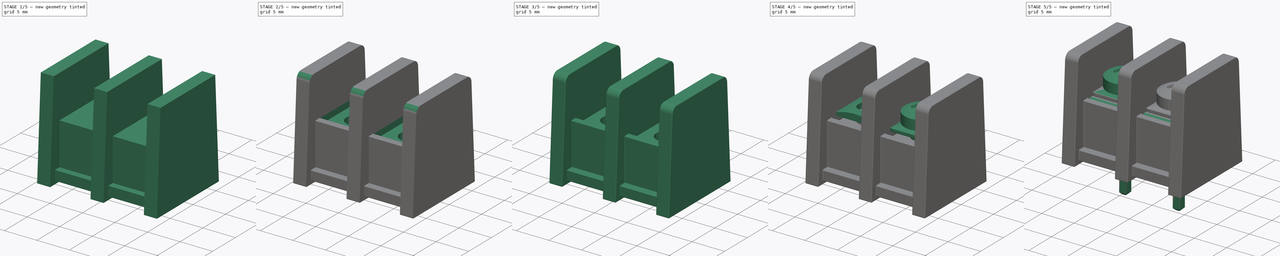
[diagram: build sequence overview — one tinted view per stage of 5, left to right]
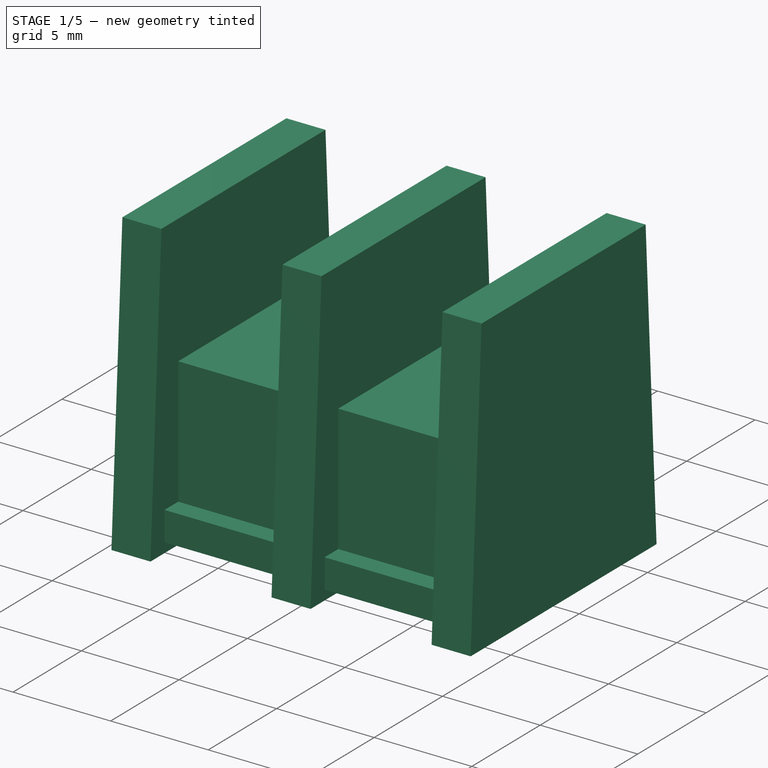
[diagram: stage 1 of 5 — iso view after this stage's code; geometry added in this stage tinted green]
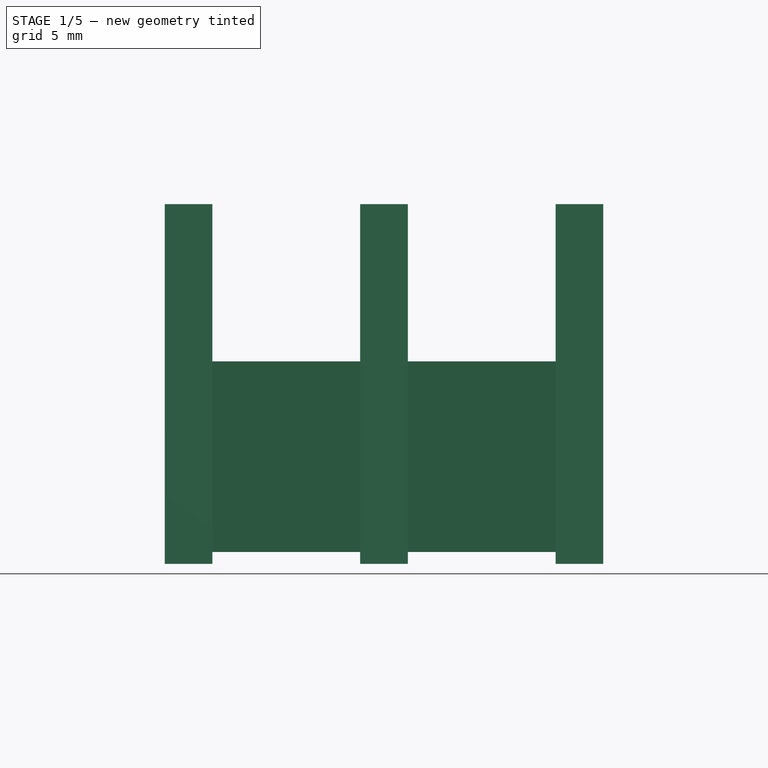
[diagram: stage 1 of 5 — front view after this stage's code; geometry added in this stage tinted green]
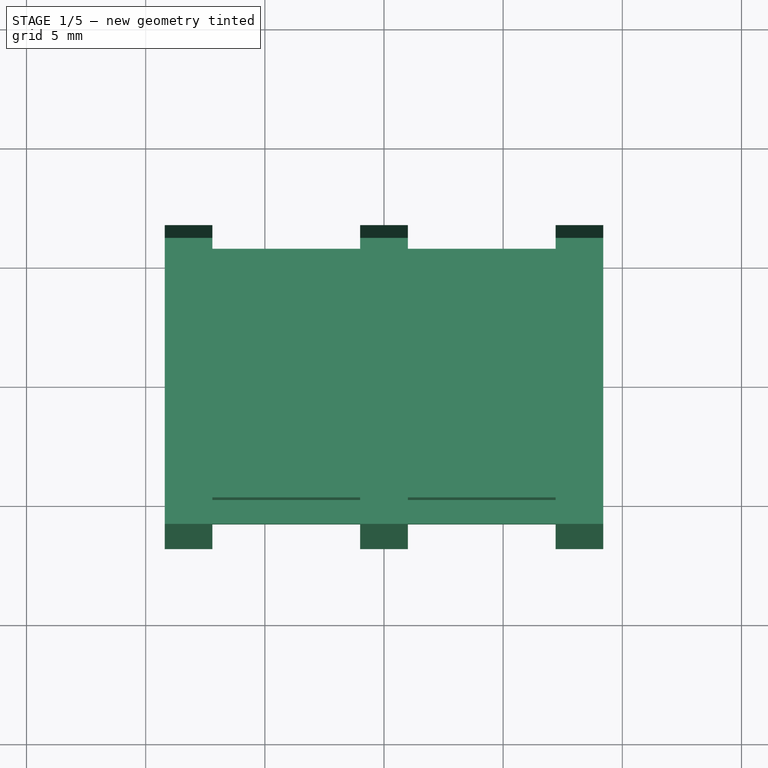
[diagram: stage 1 of 5 — top view after this stage's code; geometry added in this stage tinted green]
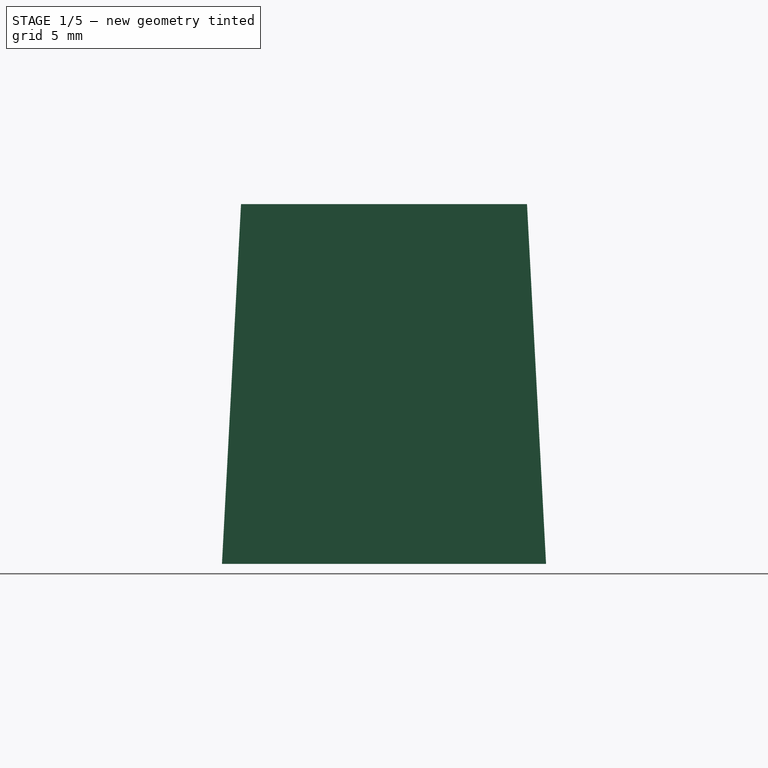
[diagram: stage 1 of 5 — right view after this stage's code; geometry added in this stage tinted green]
FCSTD DOCUMENT  (FreeCAD 0.15R4671 (Git))
Label: DG35C-B-02P-13-200AH
License: All rights reserved
LicenseURL: http://en.wikipedia.org/wiki/All_rights_reserved
objects: PartDesign::Fillet×21, Sketcher::SketchObject×16, PartDesign::Pocket×11, PartDesign::LinearPattern×7, PartDesign::Pad×5, Part::FeaturePython×2, PartDesign::Chamfer×1
note: 79 computed .brp shape members not serialized (recipe doc carries the construction recipe); baked Part::Feature solids carry a one-line shape summary decoded from their .brp

FEATURE [Sketcher::SketchObject] Sketch
  Placement = pos=(-9.2,0,0) rot=(0.57735,0.57735,0.57735;2.0944rad)
  sketch-geometry (4):
    g0: LineSegment StartX=-6.8 StartY=0 StartZ=0 EndX=6.8 EndY=0 EndZ=0
    g1: LineSegment StartX=6.8 StartY=0 StartZ=0 EndX=6 EndY=15.1 EndZ=0
    g2: LineSegment StartX=6 StartY=15.1 StartZ=0 EndX=-6 EndY=15.1 EndZ=0
    g3: LineSegment StartX=-6 StartY=15.1 StartZ=0 EndX=-6.8 EndY=0 EndZ=0
  constraints (12):
    c: PointOnObject(g0,g-1)
    c: Horizontal(g0)
    c: Coincident(g0,g1)
    c: Coincident(g1,g2)
    c: Horizontal(g2)
    c: Coincident(g2,g3)
    c: Coincident(g3,g0)
    c: DistanceX(g0) = 13.6
    c: DistanceX(g2) = -12
    c: DistanceY(g2,g0) = -15.1
    c: Symmetric(g2,g1,g-2)
    c: Symmetric(g0,g0,g-1)
FEATURE [PartDesign::Pad] Pad
  Length = 18.4
  Length2 = 100
  Placement = pos=(-9.2,0,0) rot=(0.57735,0.57735,0.57735;2.0944rad)
  Sketch = -> Sketch
  Type = 0
FEATURE [Sketcher::SketchObject] Sketch001
  Placement = pos=(-9.2,0,0) rot=(0.707107,0.707107,0;3.14159rad)
  Support = -> Pad [Face1]
  sketch-geometry (4):
    g0: LineSegment StartX=-8 StartY=8.2 StartZ=0 EndX=8 EndY=8.2 EndZ=0
    g1: LineSegment StartX=8 StartY=8.2 StartZ=0 EndX=8 EndY=2 EndZ=0
    g2: LineSegment StartX=8 StartY=2 StartZ=0 EndX=-8 EndY=2 EndZ=0
    g3: LineSegment StartX=-8 StartY=2 StartZ=0 EndX=-8 EndY=8.2 EndZ=0
  constraints (12):
    c: Coincident(g0,g1)
    c: Coincident(g1,g2)
    c: Coincident(g2,g3)
    c: Coincident(g3,g0)
    c: Horizontal(g0)
    c: Horizontal(g2)
    c: Vertical(g1)
    c: Vertical(g3)
    c: DistanceX(g2) = -16
    c: DistanceY(g1) = -6.2
    c: DistanceY(g-1,g2) = 2
    c: Symmetric(g2,g1,g-2)
FEATURE [PartDesign::Pocket] Pocket
  Length = 0.5
  Placement = pos=(-9.2,0,0) rot=(0.57735,0.57735,0.57735;2.0944rad)
  Sketch = -> Sketch001
  Type = 0
FEATURE [PartDesign::LinearPattern] LinearPattern
  Direction = -> Sketch001 [V_Axis]
  Length = 8.2
  Occurrences = 2
  Originals = -> [Pocket]
  Placement = pos=(-9.2,0,0) rot=(0.57735,0.57735,0.57735;2.0944rad)
FEATURE [Sketcher::SketchObject] Sketch002
  Placement = pos=(-9.2,0,15.1) rot=(0,0,-1;1.5708rad)
  Support = -> LinearPattern [Face6]
  sketch-geometry (4):
    g0: LineSegment StartX=-8 StartY=8.2 StartZ=0 EndX=8 EndY=8.2 EndZ=0
    g1: LineSegment StartX=8 StartY=8.2 StartZ=0 EndX=8 EndY=2 EndZ=0
    g2: LineSegment StartX=8 StartY=2 StartZ=0 EndX=-8 EndY=2 EndZ=0
    g3: LineSegment StartX=-8 StartY=2 StartZ=0 EndX=-8 EndY=8.2 EndZ=0
  constraints (12):
    c: Coincident(g0,g1)
    c: Coincident(g1,g2)
    c: Coincident(g2,g3)
    c: Coincident(g3,g0)
    c: Horizontal(g0)
    c: Horizontal(g2)
    c: Vertical(g1)
    c: Vertical(g3)
    c: DistanceY(g1) = -6.2
    c: DistanceX(g2) = -16
    c: DistanceY(g-1,g2) = 2
    c: Symmetric(g2,g1,g-2)
FEATURE [PartDesign::Pocket] Pocket001
  Length = 6.6
  Placement = pos=(-9.2,0,0) rot=(0.57735,0.57735,0.57735;2.0944rad)
  Sketch = -> Sketch002
  Type = 0
FEATURE [PartDesign::LinearPattern] LinearPattern001
  Direction = -> Sketch002 [V_Axis]
  Length = 8.2
  Occurrences = 2
  Originals = -> [Pocket001]
  Placement = pos=(-9.2,0,0) rot=(0.57735,0.57735,0.57735;2.0944rad)
FEATURE [Sketcher::SketchObject] Sketch003
  ExternalGeometry = -> [LinearPattern001]
  Placement = pos=(-9.2,0,0.5) rot=(0.707107,0.707107,0;3.14159rad)
  Support = -> LinearPattern001 [Face22]
  sketch-geometry (8):
    g0: LineSegment StartX=-6.77351 StartY=8.2 StartZ=0 EndX=-5.77351 EndY=8.2 EndZ=0
    g1: LineSegment StartX=-5.77351 StartY=8.2 StartZ=0 EndX=-5.77351 EndY=2 EndZ=0
    g2: LineSegment StartX=-5.77351 StartY=2 StartZ=0 EndX=-6.77351 EndY=2 EndZ=0
    g3: LineSegment StartX=-6.77351 StartY=2 StartZ=0 EndX=-6.77351 EndY=8.2 EndZ=0
    g4: LineSegment StartX=5.77351 StartY=8.2 StartZ=0 EndX=6.77351 EndY=8.2 EndZ=0
    g5: LineSegment StartX=6.77351 StartY=8.2 StartZ=0 EndX=6.77351 EndY=2 EndZ=0
    g6: LineSegment StartX=6.77351 StartY=2 StartZ=0 EndX=5.77351 EndY=2 EndZ=0
    g7: LineSegment StartX=5.77351 StartY=2 StartZ=0 EndX=5.77351 EndY=8.2 EndZ=0
  constraints (23):
    c: Coincident(g0,g1)
    c: Coincident(g1,g2)
    c: Coincident(g2,g3)
    c: Coincident(g3,g0)
    c: Horizontal(g0)
    c: Horizontal(g2)
    c: Vertical(g1)
    c: Vertical(g3)
    c: Coincident(g0,g-3)
    c: Coincident(g2,g-3)
    c: DistanceX(g2) = -1
    c: Coincident(g4,g5)
    c: Coincident(g5,g6)
    c: Coincident(g6,g7)
    c: Coincident(g7,g4)
    c: Horizontal(g4)
    c: Horizontal(g6)
    c: Vertical(g5)
    c: Vertical(g7)
    c: DistanceX(g-1,g5) = 6.77351
    c: DistanceY(g6,g2) = 0
    c: Equal(g7,g1)
    c: Equal(g4,g0)
FEATURE [PartDesign::Pocket] Pocket002
  Length = 5
  Placement = pos=(-9.2,0,0) rot=(0.57735,0.57735,0.57735;2.0944rad)
  Sketch = -> Sketch003
  Type = 1
FEATURE [PartDesign::LinearPattern] LinearPattern002
  Direction = -> Sketch003 [V_Axis]
  Length = 8.2
  Occurrences = 2
  Originals = -> [Pocket002]
  Placement = pos=(-9.2,0,0) rot=(0.57735,0.57735,0.57735;2.0944rad)
FEATURE [Sketcher::SketchObject] Sketch004
  ExternalGeometry = -> [LinearPattern002]
  Placement = pos=(-9.2,0,8.5) rot=(0,0,-1;1.5708rad)
  Support = -> LinearPattern002 [Face13]
  sketch-geometry (8):
    g0: LineSegment StartX=-5.77351 StartY=8.2 StartZ=0 EndX=-4.77351 EndY=8.2 EndZ=0
    g1: LineSegment StartX=-4.77351 StartY=8.2 StartZ=0 EndX=-4.77351 EndY=2 EndZ=0
    g2: LineSegment StartX=-4.77351 StartY=2 StartZ=0 EndX=-5.77351 EndY=2 EndZ=0
    g3: LineSegment StartX=-5.77351 StartY=2 StartZ=0 EndX=-5.77351 EndY=8.2 EndZ=0
    g4: LineSegment StartX=5.77351 StartY=8.2 StartZ=0 EndX=4.77351 EndY=8.2 EndZ=0
    g5: LineSegment StartX=4.77351 StartY=8.2 StartZ=0 EndX=4.77351 EndY=2 EndZ=0
    g6: LineSegment StartX=4.77351 StartY=2 StartZ=0 EndX=5.77351 EndY=2 EndZ=0
    g7: LineSegment StartX=5.77351 StartY=2 StartZ=0 EndX=5.77351 EndY=8.2 EndZ=0
  constraints (22):
    c: Coincident(g0,g1)
    c: Coincident(g1,g2)
    c: Coincident(g2,g3)
    c: Coincident(g3,g0)
    c: Horizontal(g0)
    c: Horizontal(g2)
    c: Vertical(g1)
    c: Vertical(g3)
    c: Coincident(g0,g-3)
    c: Coincident(g2,g-3)
    c: DistanceX(g2) = -1
    c: Coincident(g4,g5)
    c: Coincident(g5,g6)
    c: Coincident(g6,g7)
    c: Coincident(g7,g4)
    c: Horizontal(g4)
    c: Horizontal(g6)
    c: Vertical(g5)
    c: Vertical(g7)
    c: Coincident(g4,g-4)
    c: Coincident(g6,g-4)
    c: Equal(g6,g2)
FEATURE [PartDesign::Pocket] Pocket003
  Length = 6.5
  Placement = pos=(-9.2,0,0) rot=(0.57735,0.57735,0.57735;2.0944rad)
  Sketch = -> Sketch004
  Type = 0
FEATURE [PartDesign::LinearPattern] LinearPattern003
  Direction = -> Sketch004 [V_Axis]
  Length = 8.2
  Occurrences = 2
  Originals = -> [Pocket003]
  Placement = pos=(-9.2,0,0) rot=(0.57735,0.57735,0.57735;2.0944rad)
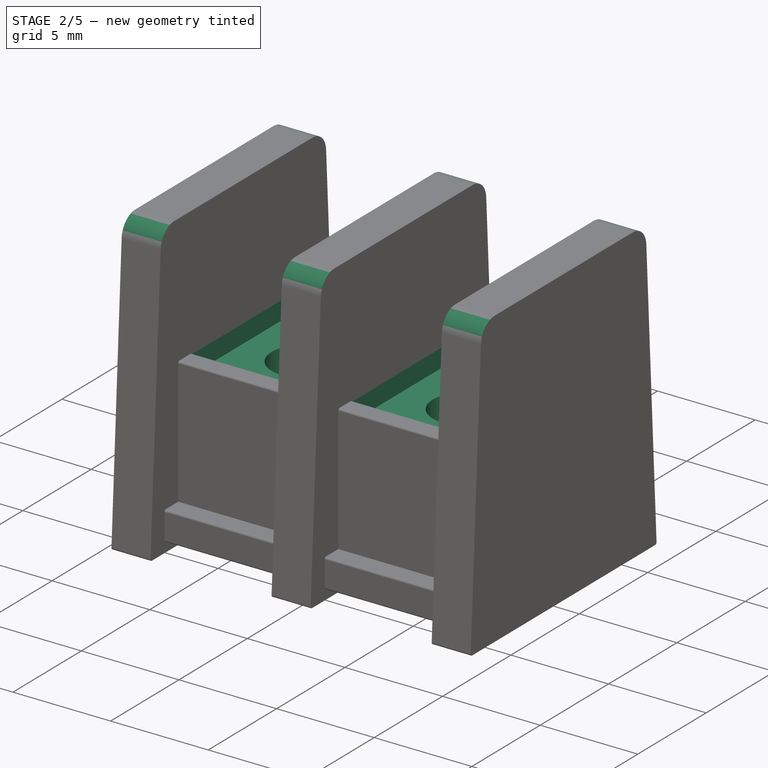
[diagram: stage 2 of 5 — iso view after this stage's code; geometry added in this stage tinted green]
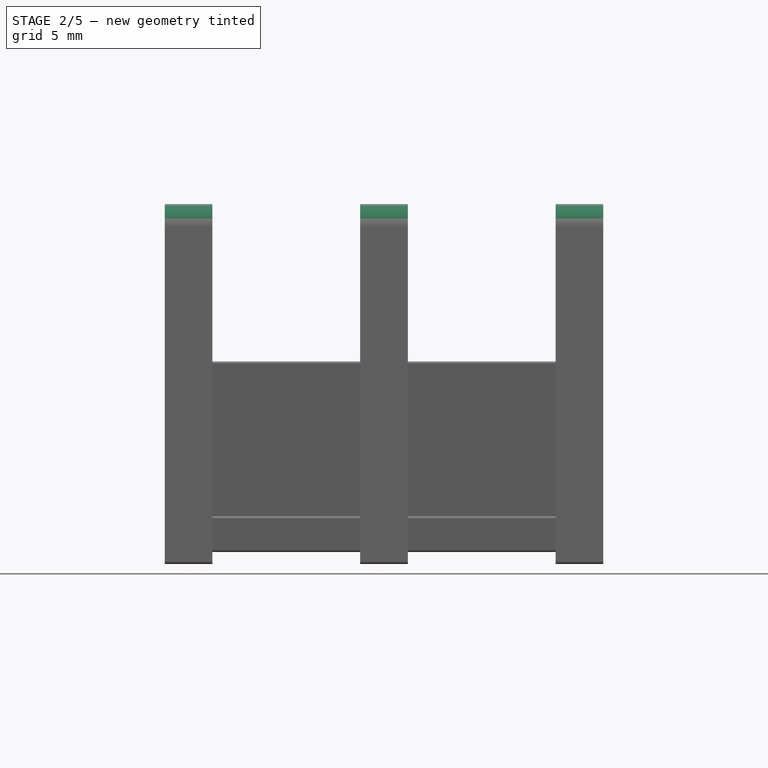
[diagram: stage 2 of 5 — front view after this stage's code; geometry added in this stage tinted green]
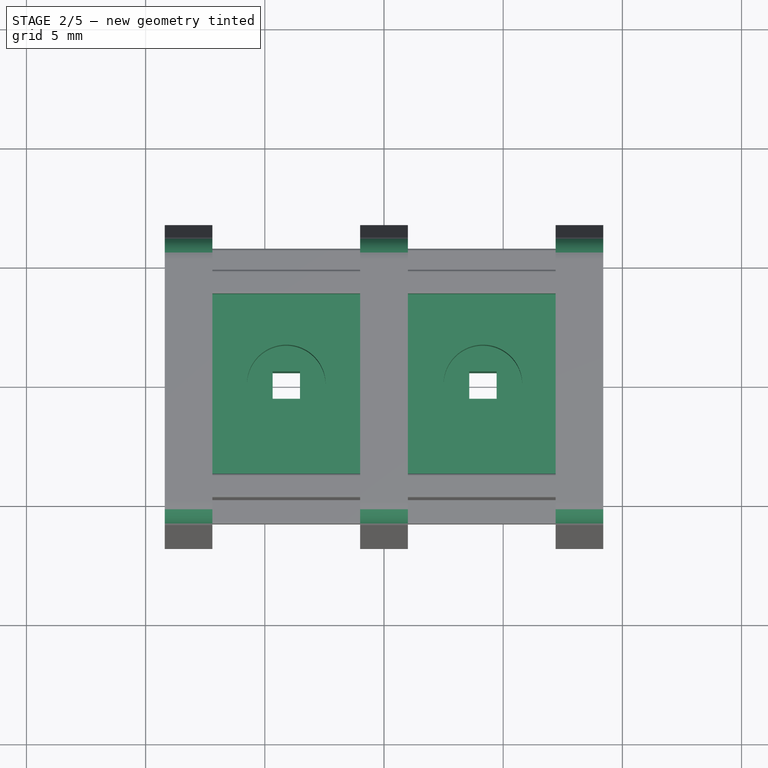
[diagram: stage 2 of 5 — top view after this stage's code; geometry added in this stage tinted green]
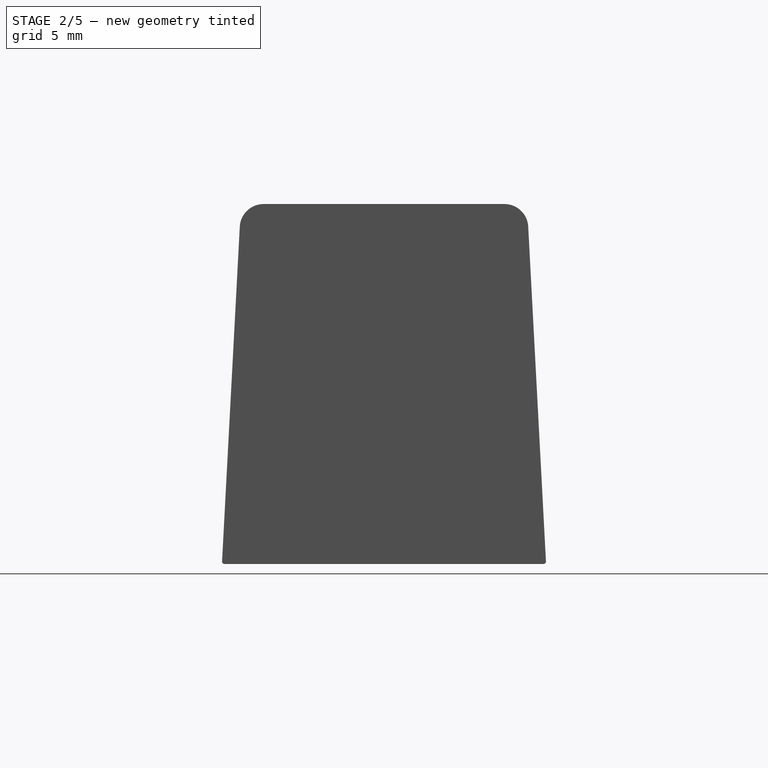
[diagram: stage 2 of 5 — right view after this stage's code; geometry added in this stage tinted green]
FEATURE [Sketcher::SketchObject] Sketch005
  ExternalGeometry = -> [LinearPattern003]
  Placement = pos=(-9.2,0,8.5) rot=(0,0,-1;1.5708rad)
  Support = -> LinearPattern003 [Face27]
  sketch-geometry (4):
    g0: LineSegment StartX=-3.77351 StartY=8.2 StartZ=0 EndX=3.77351 EndY=8.2 EndZ=0
    g1: LineSegment StartX=3.77351 StartY=8.2 StartZ=0 EndX=3.77351 EndY=2 EndZ=0
    g2: LineSegment StartX=3.77351 StartY=2 StartZ=0 EndX=-3.77351 EndY=2 EndZ=0
    g3: LineSegment StartX=-3.77351 StartY=2 StartZ=0 EndX=-3.77351 EndY=8.2 EndZ=0
  constraints (12):
    c: Coincident(g0,g1)
    c: Coincident(g1,g2)
    c: Coincident(g2,g3)
    c: Coincident(g3,g0)
    c: Horizontal(g0)
    c: Horizontal(g2)
    c: Vertical(g1)
    c: Vertical(g3)
    c: DistanceY(g1,g-4) = 0
    c: DistanceY(g0,g-3) = 0
    c: DistanceX(g0,g-3) = -1
    c: DistanceX(g0,g-4) = 1
FEATURE [PartDesign::Pocket] Pocket004
  Length = 1
  Placement = pos=(-9.2,0,0) rot=(0.57735,0.57735,0.57735;2.0944rad)
  Sketch = -> Sketch005
  Type = 0
FEATURE [PartDesign::LinearPattern] LinearPattern004
  Direction = -> Sketch005 [V_Axis]
  Length = 8.2
  Occurrences = 2
  Originals = -> [Pocket004]
  Placement = pos=(-9.2,0,0) rot=(0.57735,0.57735,0.57735;2.0944rad)
FEATURE [Sketcher::SketchObject] Sketch006
  Placement = pos=(-9.2,0,7.5) rot=(0,0,-1;1.5708rad)
  Support = -> LinearPattern004 [Face19]
  sketch-geometry (4):
    g0: LineSegment StartX=-0.575 StartY=5.675 StartZ=0 EndX=0.575 EndY=5.675 EndZ=0
    g1: LineSegment StartX=0.575 StartY=5.675 StartZ=0 EndX=0.575 EndY=4.525 EndZ=0
    g2: LineSegment StartX=0.575 StartY=4.525 StartZ=0 EndX=-0.575 EndY=4.525 EndZ=0
    g3: LineSegment StartX=-0.575 StartY=4.525 StartZ=0 EndX=-0.575 EndY=5.675 EndZ=0
  constraints (12):
    c: Coincident(g0,g1)
    c: Coincident(g1,g2)
    c: Coincident(g2,g3)
    c: Coincident(g3,g0)
    c: Horizontal(g0)
    c: Horizontal(g2)
    c: Vertical(g1)
    c: Vertical(g3)
    c: DistanceY(g-1,g2) = 4.525
    c: DistanceY(g1) = -1.15
    c: DistanceX(g0) = 1.15
    c: Symmetric(g0,g0,g-2)
FEATURE [PartDesign::Pocket] Pocket005
  Length = 5
  Placement = pos=(-9.2,0,0) rot=(0.57735,0.57735,0.57735;2.0944rad)
  Sketch = -> Sketch006
  Type = 1
FEATURE [PartDesign::LinearPattern] LinearPattern005
  Direction = -> Sketch006 [V_Axis]
  Length = 8.25
  Occurrences = 2
  Originals = -> [Pocket005]
  Placement = pos=(-9.2,0,0) rot=(0.57735,0.57735,0.57735;2.0944rad)
FEATURE [Sketcher::SketchObject] Sketch009
  Placement = pos=(-9.2,0,7.5) rot=(0,0,-1;1.5708rad)
  Support = -> LinearPattern005 [Face10]
  sketch-geometry (1):
    g0: Circle CenterX=0 CenterY=5.1 CenterZ=0 NormalX=0 NormalY=0 NormalZ=1 Radius=1.65
  constraints (3):
    c: PointOnObject(g0,g-2)
    c: DistanceY(g-1,g0) = 5.1
    c: Radius(g0) = 1.65
FEATURE [PartDesign::Pocket] Pocket006
  Length = 2.5
  Placement = pos=(-9.2,0,0) rot=(0.57735,0.57735,0.57735;2.0944rad)
  Sketch = -> Sketch009
  Type = 0
FEATURE [PartDesign::LinearPattern] LinearPattern006
  Direction = -> Sketch009 [V_Axis]
  Length = 8.25
  Occurrences = 2
  Originals = -> [Pocket006]
  Placement = pos=(-9.2,0,0) rot=(0.57735,0.57735,0.57735;2.0944rad)
FEATURE [PartDesign::Fillet] Fillet006
  Base = -> LinearPattern006 [Edge161,Edge90,Edge30,Edge26,Edge84,Edge159]
  Placement = pos=(-9.2,0,0) rot=(0.57735,0.57735,0.57735;2.0944rad)
  Radius = 1
FEATURE [PartDesign::Fillet] Fillet007
  Base = -> Fillet006 [Edge171,Edge96,Edge25,Edge32,Edge88,Edge163]
  Placement = pos=(-9.2,0,0) rot=(0.57735,0.57735,0.57735;2.0944rad)
  Radius = 0.1
FEATURE [PartDesign::Fillet] Fillet008
  Base = -> Fillet007 [Edge124,Edge128,Edge135,Edge137,Edge41,Edge45,Edge52,Edge54,Edge57,Edge140,Edge151,Edge68]
  Placement = pos=(-9.2,0,0) rot=(0.57735,0.57735,0.57735;2.0944rad)
  Radius = 0.1
FEATURE [PartDesign::Fillet] Fillet009
  Base = -> Fillet008 [Edge45,Edge162,Edge165,Edge48]
  Placement = pos=(-9.2,0,0) rot=(0.57735,0.57735,0.57735;2.0944rad)
  Radius = 0.1
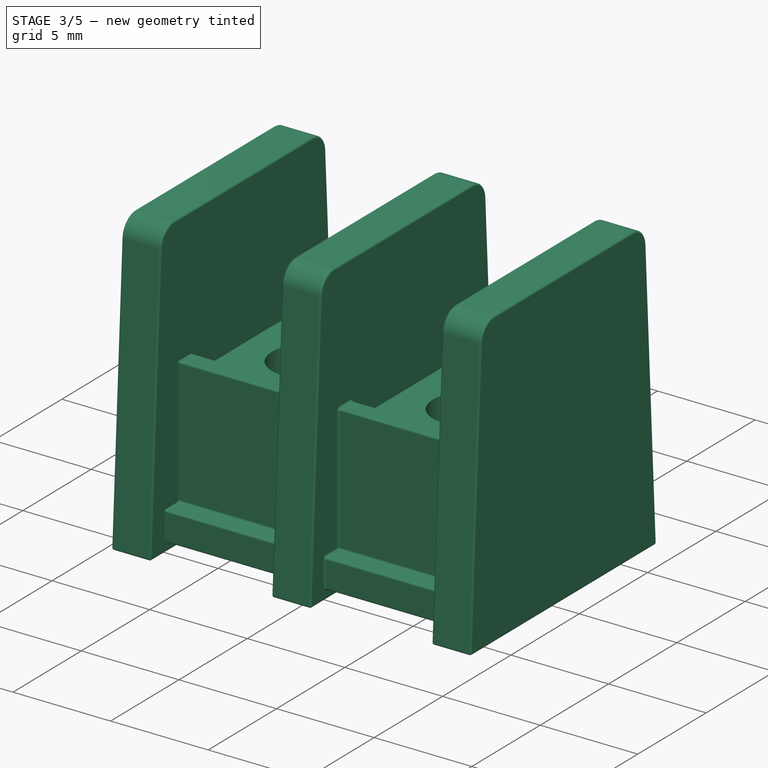
[diagram: stage 3 of 5 — iso view after this stage's code; geometry added in this stage tinted green]
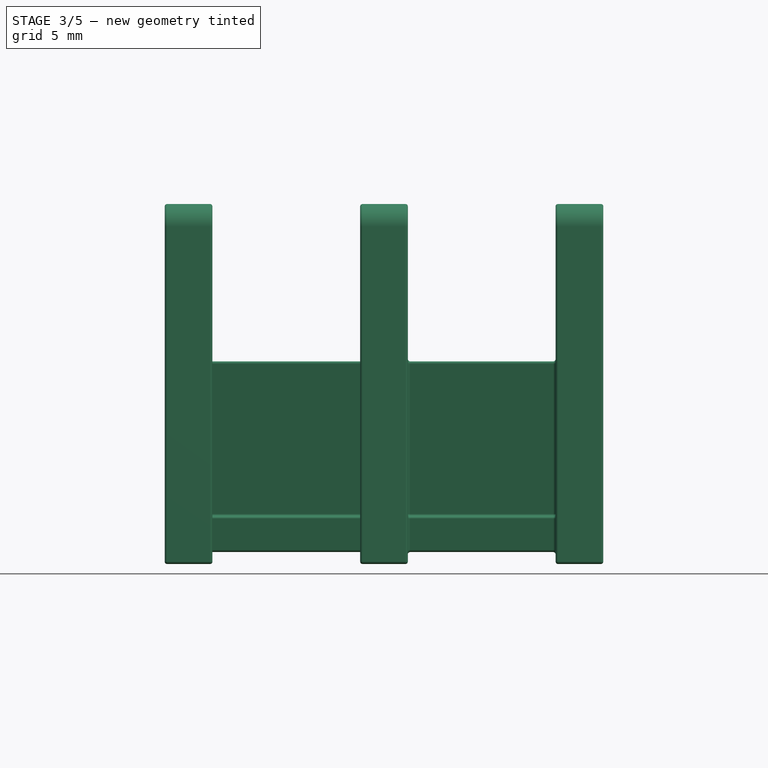
[diagram: stage 3 of 5 — front view after this stage's code; geometry added in this stage tinted green]
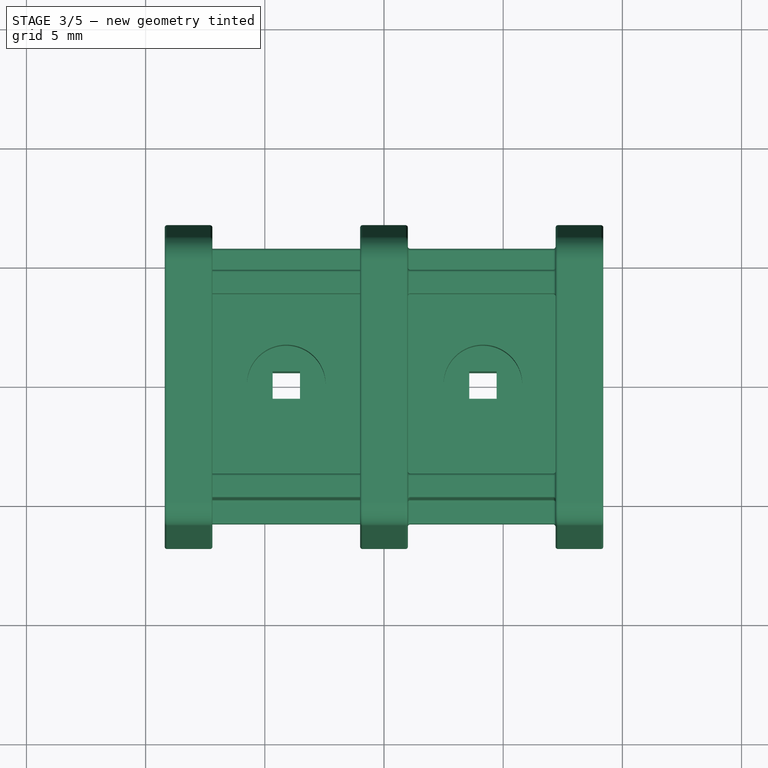
[diagram: stage 3 of 5 — top view after this stage's code; geometry added in this stage tinted green]
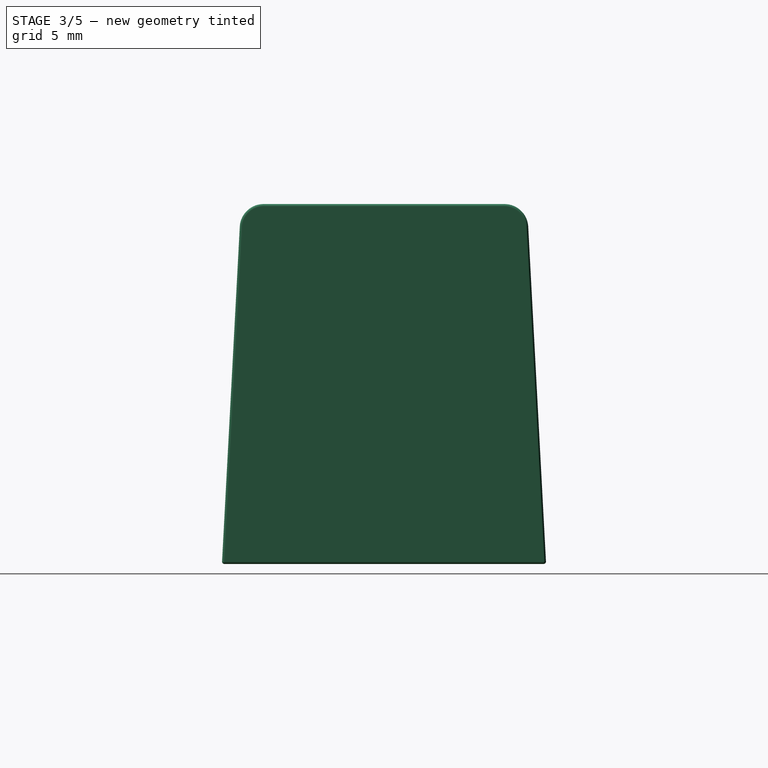
[diagram: stage 3 of 5 — right view after this stage's code; geometry added in this stage tinted green]
FEATURE [PartDesign::Fillet] Fillet010
  Base = -> Fillet009 [Edge169,Edge46,Edge60,Edge183]
  Placement = pos=(-9.2,0,0) rot=(0.57735,0.57735,0.57735;2.0944rad)
  Radius = 0.1
FEATURE [PartDesign::Fillet] Fillet011
  Base = -> Fillet010 [Edge240]
  Placement = pos=(-9.2,0,0) rot=(0.57735,0.57735,0.57735;2.0944rad)
  Radius = 0.1
FEATURE [PartDesign::Fillet] Fillet012
  Base = -> Fillet011 [Edge35]
  Placement = pos=(-9.2,0,0) rot=(0.57735,0.57735,0.57735;2.0944rad)
  Radius = 0.1
FEATURE [PartDesign::Fillet] Fillet013
  Base = -> Fillet012 [Edge143]
  Placement = pos=(-9.2,0,0) rot=(0.57735,0.57735,0.57735;2.0944rad)
  Radius = 0.1
FEATURE [PartDesign::Fillet] Fillet014
  Base = -> Fillet013 [Edge107]
  Placement = pos=(-9.2,0,0) rot=(0.57735,0.57735,0.57735;2.0944rad)
  Radius = 0.1
FEATURE [PartDesign::Fillet] Fillet015
  Base = -> Fillet014 [Edge226]
  Placement = pos=(-9.2,0,0) rot=(0.57735,0.57735,0.57735;2.0944rad)
  Radius = 0.1
FEATURE [PartDesign::Fillet] Fillet016
  Base = -> Fillet015 [Edge107]
  Placement = pos=(-9.2,0,0) rot=(0.57735,0.57735,0.57735;2.0944rad)
  Radius = 0.1
FEATURE [PartDesign::Fillet] Fillet017
  Base = -> Fillet016 [Edge50]
  Placement = pos=(-9.2,0,0) rot=(0.57735,0.57735,0.57735;2.0944rad)
  Radius = 0.1
FEATURE [PartDesign::Fillet] Fillet018
  Base = -> Fillet017 [Edge120]
  Placement = pos=(-9.2,0,0) rot=(0.57735,0.57735,0.57735;2.0944rad)
  Radius = 0.1
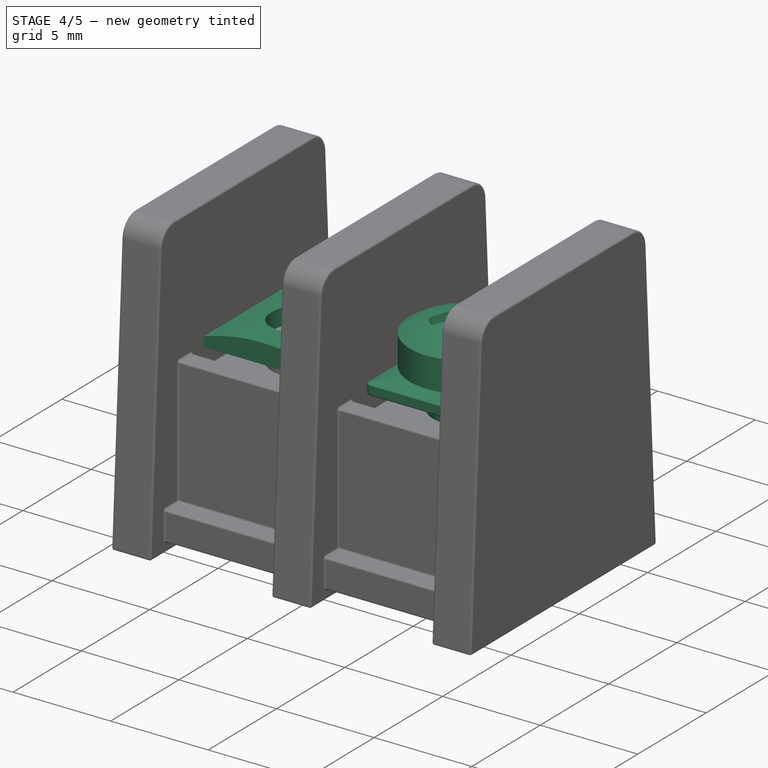
[diagram: stage 4 of 5 — iso view after this stage's code; geometry added in this stage tinted green]
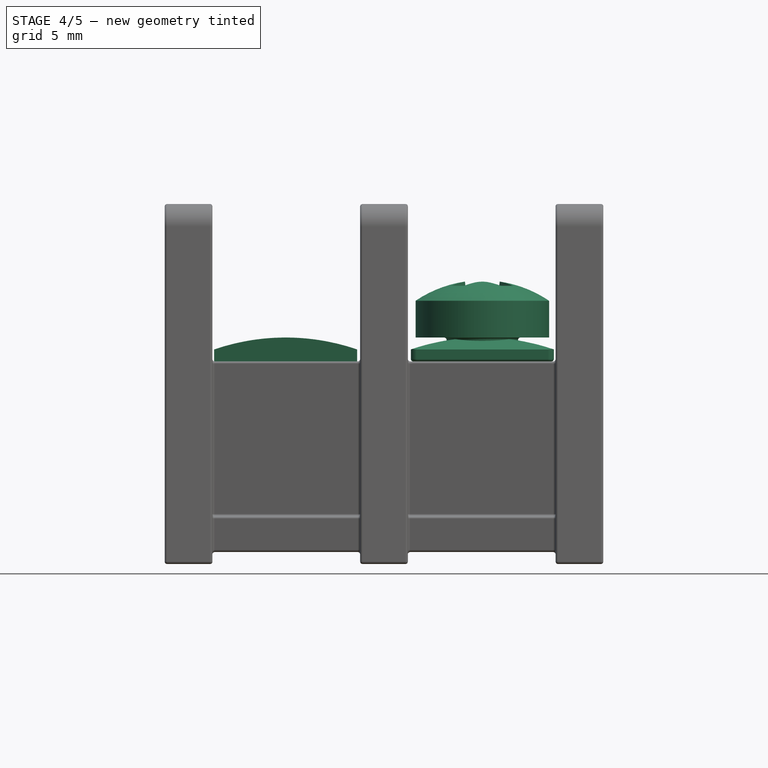
[diagram: stage 4 of 5 — front view after this stage's code; geometry added in this stage tinted green]
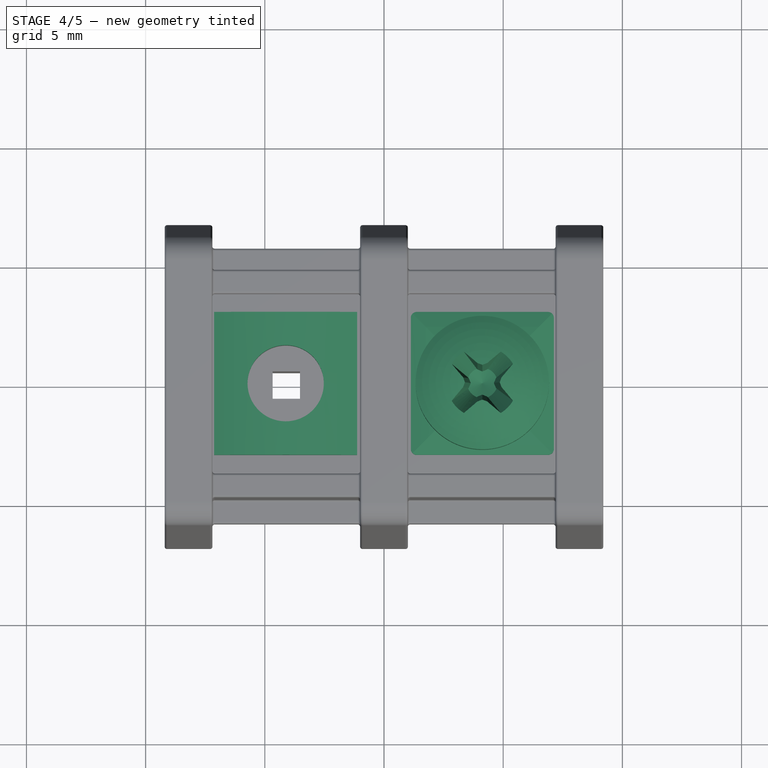
[diagram: stage 4 of 5 — top view after this stage's code; geometry added in this stage tinted green]
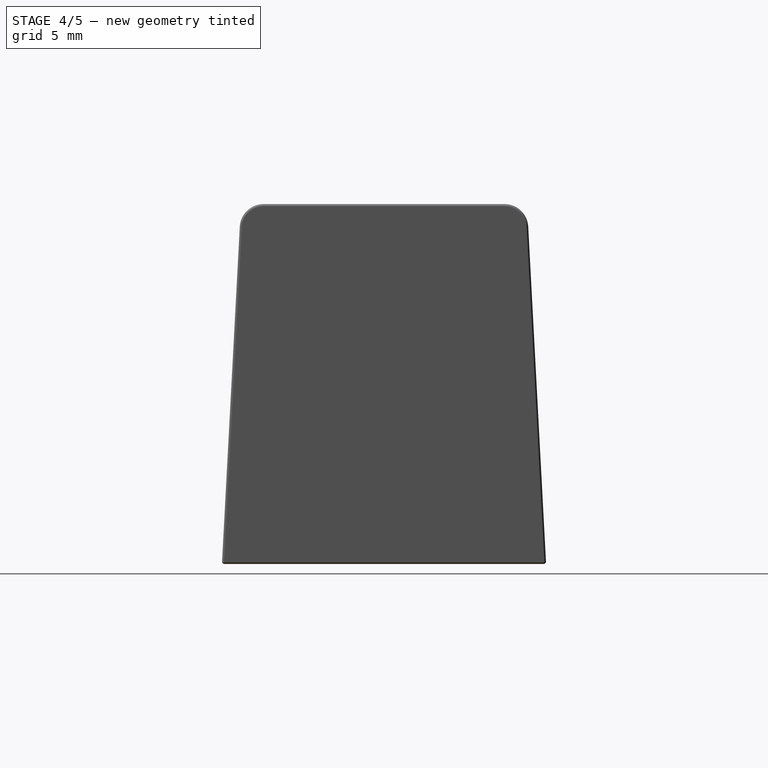
[diagram: stage 4 of 5 — right view after this stage's code; geometry added in this stage tinted green]
FEATURE [Sketcher::SketchObject] Sketch011
  Placement = pos=(0,0,8.5) rot=(0,0,1;0rad)
  sketch-geometry (5):
    g0: LineSegment StartX=-7.125 StartY=3 StartZ=0 EndX=-1.125 EndY=3 EndZ=0
    g1: LineSegment StartX=-1.125 StartY=3 StartZ=0 EndX=-1.125 EndY=-3 EndZ=0
    g2: LineSegment StartX=-1.125 StartY=-3 StartZ=0 EndX=-7.125 EndY=-3 EndZ=0
    g3: LineSegment StartX=-7.125 StartY=-3 StartZ=0 EndX=-7.125 EndY=3 EndZ=0
    g4: Circle CenterX=-4.125 CenterY=0 CenterZ=0 NormalX=0 NormalY=0 NormalZ=1 Radius=1.6
  constraints (15):
    c: Coincident(g0,g1)
    c: Coincident(g1,g2)
    c: Coincident(g2,g3)
    c: Coincident(g3,g0)
    c: Horizontal(g0)
    c: Horizontal(g2)
    c: Vertical(g1)
    c: Vertical(g3)
    c: Equal(g0,g1)
    c: Symmetric(g0,g1,g-1)
    c: DistanceX(g0) = 6
    c: DistanceX(g-1,g1) = -1.125
    c: PointOnObject(g4,g-1)
    c: DistanceX(g-1,g4) = -4.125
    c: Radius(g4) = 1.6
FEATURE [PartDesign::Pad] Pad003
  Length = 1
  Length2 = 100
  Placement = pos=(0,0,8.5) rot=(0,0,1;0rad)
  Sketch = -> Sketch011
  Type = 0
FEATURE [Sketcher::SketchObject] Sketch012
  ExternalGeometry = -> [Pad003]
  Placement = pos=(0,-3,8.5) rot=(1,0,0;1.5708rad)
  Support = -> Pad003 [Face3]
  sketch-geometry (6):
    g0: ArcOfCircle CenterX=-4.125 CenterY=-8.25 CenterZ=0 NormalX=0 NormalY=0 NormalZ=1 Radius=9.25 StartAngle=1.2405 EndAngle=1.90109
    g1: LineSegment StartX=-7.74059 StartY=1.84364 StartZ=0 EndX=-0.509405 EndY=1.84364 EndZ=0
    g2: LineSegment StartX=-0.509405 StartY=1.84364 StartZ=0 EndX=-0.509405 EndY=0.5 EndZ=0
    g3: LineSegment StartX=-0.509405 StartY=0.5 StartZ=0 EndX=-1.125 EndY=0.5 EndZ=0
    g4: LineSegment StartX=-7.74059 StartY=1.84364 StartZ=0 EndX=-7.74059 EndY=0.5 EndZ=0
    g5: LineSegment StartX=-7.74059 StartY=0.5 StartZ=0 EndX=-7.125 EndY=0.5 EndZ=0
  constraints (19):
    c: PointOnObject(g0,g-4)
    c: PointOnObject(g0,g-5)
    c: Tangent(g0,g-3)
    c: DistanceY(g0,g-4) = 0.5
    c: DistanceY(g0,g-5) = 0.5
    c: Horizontal(g1)
    c: Coincident(g1,g2)
    c: Vertical(g2)
    c: Coincident(g2,g3)
    c: Coincident(g3,g0)
    c: Coincident(g1,g4)
    c: Vertical(g4)
    c: Coincident(g4,g5)
    c: Coincident(g5,g0)
    c: Horizontal(g5)
    c: Horizontal(g3)
    c: Equal(g5,g3)
    c: DistanceX(g1) = 7.23119
    c: DistanceY(g4) = -1.34364
FEATURE [PartDesign::Pocket] Pocket007
  Length = 5
  Placement = pos=(0,0,8.5) rot=(0,0,1;0rad)
  Sketch = -> Sketch012
  Type = 1
FEATURE [Sketcher::SketchObject] Sketch014
  Placement = pos=(8.25,0,8.5) rot=(0,0,1;0rad)
  sketch-geometry (5):
    g0: LineSegment StartX=-7.125 StartY=3 StartZ=0 EndX=-1.125 EndY=3 EndZ=0
    g1: LineSegment StartX=-1.125 StartY=3 StartZ=0 EndX=-1.125 EndY=-3 EndZ=0
    g2: LineSegment StartX=-1.125 StartY=-3 StartZ=0 EndX=-7.125 EndY=-3 EndZ=0
    g3: LineSegment StartX=-7.125 StartY=-3 StartZ=0 EndX=-7.125 EndY=3 EndZ=0
    g4: Circle CenterX=-4.125 CenterY=0 CenterZ=0 NormalX=0 NormalY=0 NormalZ=1 Radius=1.6
  constraints (15):
    c: Coincident(g0,g1)
    c: Coincident(g1,g2)
    c: Coincident(g2,g3)
    c: Coincident(g3,g0)
    c: Horizontal(g0)
    c: Horizontal(g2)
    c: Vertical(g1)
    c: Vertical(g3)
    c: Equal(g0,g1)
    c: Symmetric(g0,g1,g-1)
    c: DistanceX(g0) = 6
    c: DistanceX(g-1,g1) = -1.125
    c: PointOnObject(g4,g-1)
    c: DistanceX(g-1,g4) = -4.125
    c: Radius(g4) = 1.6
FEATURE [PartDesign::Pad] Pad004
  Length = 1
  Length2 = 100
  Placement = pos=(8.25,0,8.5) rot=(0,0,1;0rad)
  Sketch = -> Sketch014
  Type = 0
FEATURE [Part::FeaturePython] Screw001  label="M3x5-Screw001"  # Fasteners workbench fastener (typed FeaturePython)
  Placement = pos=(4.125,0,9.5) rot=(0,0,1;0rad)
  baseObject = -> Pad004 [Edge15]
  diameter = 4
  invert = false
  length = 1
  matchOuter = false
  offset = 0
  thread = false
  type = 16
FEATURE [Sketcher::SketchObject] Sketch015
  ExternalGeometry = -> [Pad004]
  Placement = pos=(8.25,-3,8.5) rot=(1,0,0;1.5708rad)
  Support = -> Pad004 [Face3]
  sketch-geometry (6):
    g0: ArcOfCircle CenterX=-4.125 CenterY=-8.25 CenterZ=0 NormalX=0 NormalY=0 NormalZ=1 Radius=9.25 StartAngle=1.2405 EndAngle=1.90109
    g1: LineSegment StartX=-7.94919 StartY=2.29429 StartZ=0 EndX=-0.30081 EndY=2.29429 EndZ=0
    g2: LineSegment StartX=-0.30081 StartY=2.29429 StartZ=0 EndX=-0.30081 EndY=0.5 EndZ=0
    g3: LineSegment StartX=-0.30081 StartY=0.5 StartZ=0 EndX=-1.125 EndY=0.5 EndZ=0
    g4: LineSegment StartX=-7.94919 StartY=2.29429 StartZ=0 EndX=-7.94919 EndY=0.5 EndZ=0
    g5: LineSegment StartX=-7.94919 StartY=0.5 StartZ=0 EndX=-7.125 EndY=0.5 EndZ=0
  constraints (19):
    c: PointOnObject(g0,g-3)
    c: PointOnObject(g0,g-4)
    c: Tangent(g0,g-5)
    c: DistanceY(g0,g-5) = 0.5
    c: DistanceY(g0,g-5) = 0.5
    c: Horizontal(g1)
    c: Coincident(g1,g2)
    c: Coincident(g2,g3)
    c: Coincident(g3,g0)
    c: Vertical(g4)
    c: Coincident(g4,g5)
    c: Coincident(g5,g0)
    c: Horizontal(g5)
    c: Horizontal(g3)
    c: Vertical(g2)
    c: Equal(g3,g5)
    c: DistanceX(g1) = 7.64838
    c: DistanceY(g4) = -1.79429
    c: Coincident(g1,g4)
FEATURE [PartDesign::Pocket] Pocket009
  Length = 5
  Placement = pos=(8.25,0,8.5) rot=(0,0,1;0rad)
  Sketch = -> Sketch015
  Type = 1
FEATURE [Sketcher::SketchObject] Sketch016
  ExternalGeometry = -> [Pocket009]
  Placement = pos=(7.125,0,8.5) rot=(0.57735,0.57735,0.57735;2.0944rad)
  Support = -> Pocket009 [Face3]
  sketch-geometry (6):
    g0: ArcOfCircle CenterX=0 CenterY=-8.25 CenterZ=0 NormalX=0 NormalY=0 NormalZ=1 Radius=9.25 StartAngle=1.2405 EndAngle=1.90109
    g1: LineSegment StartX=-3.52138 StartY=1.49539 StartZ=0 EndX=3.52138 EndY=1.49539 EndZ=0
    g2: LineSegment StartX=3.52138 StartY=1.49539 StartZ=0 EndX=3.52138 EndY=0.5 EndZ=0
    g3: LineSegment StartX=3.52138 StartY=0.5 StartZ=0 EndX=3 EndY=0.5 EndZ=0
    g4: LineSegment StartX=-3.52138 StartY=1.49539 StartZ=0 EndX=-3.52138 EndY=0.5 EndZ=0
    g5: LineSegment StartX=-3.52138 StartY=0.5 StartZ=0 EndX=-3 EndY=0.5 EndZ=0
  constraints (17):
    c: Horizontal(g1)
    c: Coincident(g1,g2)
    c: Vertical(g2)
    c: Coincident(g2,g3)
    c: Horizontal(g3)
    c: Coincident(g1,g4)
    c: Vertical(g4)
    c: Coincident(g4,g5)
    c: Horizontal(g5)
    c: Radius(g0) = 9.25
    c: Equal(g5,g3)
    c: DistanceX(g1) = 7.04276
    c: DistanceY(g4) = -0.995392
    c: Coincident(g0,g3)
    c: Coincident(g0,g-4)
    c: Coincident(g0,g5)
    c: Coincident(g0,g-3)
FEATURE [PartDesign::Pocket] Pocket010
  Length = 0
  Placement = pos=(8.25,0,8.5) rot=(0,0,1;0rad)
  Sketch = -> Sketch016
  Type = 3
  UpToFace = -> Pocket009 [Face4]
FEATURE [PartDesign::Fillet] Fillet004
  Base = -> Pocket010 [Edge9,Edge2,Edge4,Edge15]
  Placement = pos=(8.25,0,8.5) rot=(0,0,1;0rad)
  Radius = 0.25
FEATURE [PartDesign::Fillet] Fillet005  label="Podlozka22"
  Base = -> Fillet004 [Edge11]
  Placement = pos=(8.25,0,8.5) rot=(0,0,1;0rad)
  Radius = 0.1
FEATURE [PartDesign::Fillet] Fillet019
  Base = -> Fillet018 [Edge322]
  Placement = pos=(-9.2,0,0) rot=(0.57735,0.57735,0.57735;2.0944rad)
  Radius = 0.1
FEATURE [PartDesign::Fillet] Fillet020  label="Housing"
  Base = -> Fillet019 [Edge120]
  Placement = pos=(-9.2,0,0) rot=(0.57735,0.57735,0.57735;2.0944rad)
  Radius = 0.1
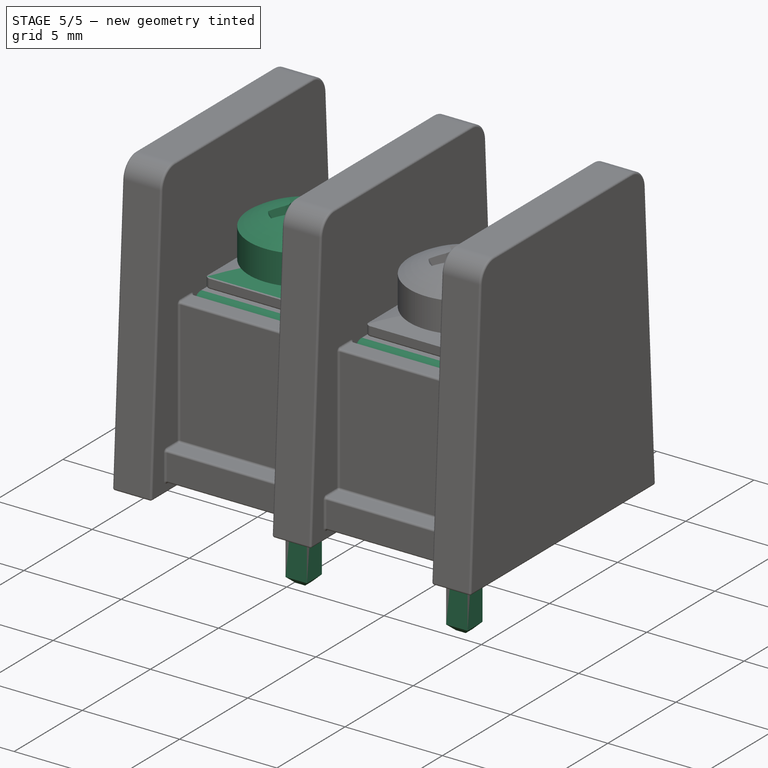
[diagram: stage 5 of 5 — iso view after this stage's code; geometry added in this stage tinted green]
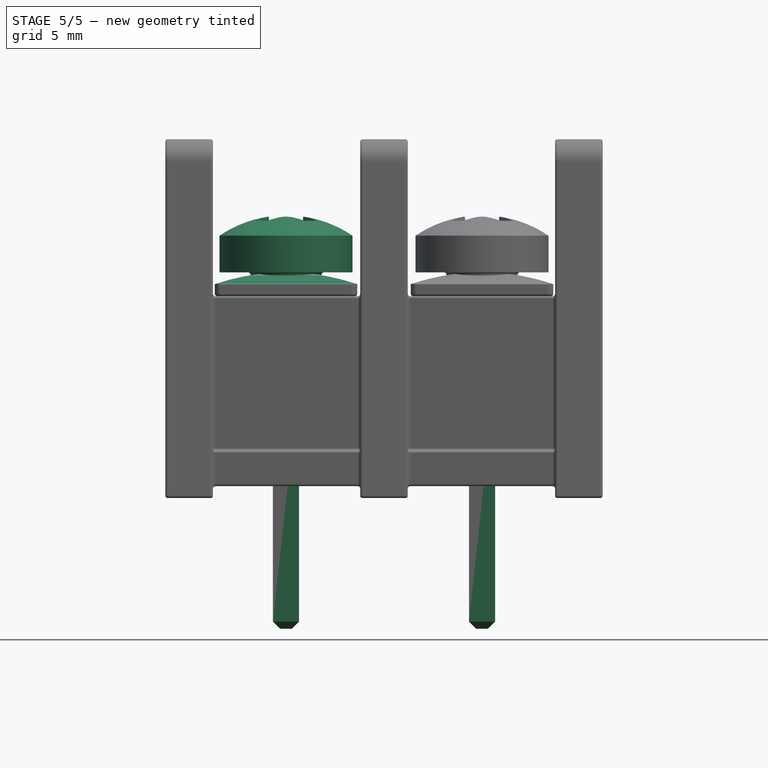
[diagram: stage 5 of 5 — front view after this stage's code; geometry added in this stage tinted green]
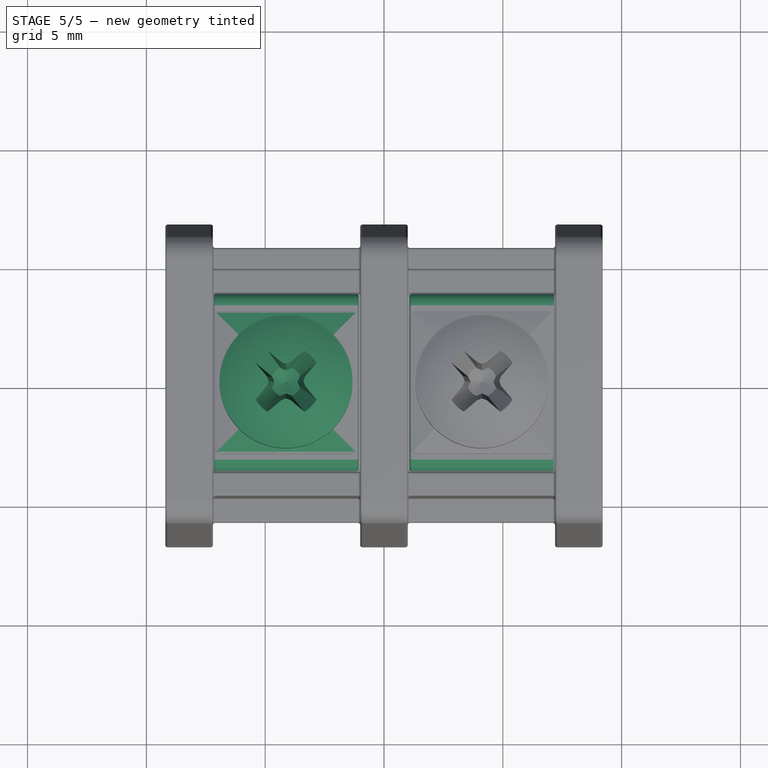
[diagram: stage 5 of 5 — top view after this stage's code; geometry added in this stage tinted green]
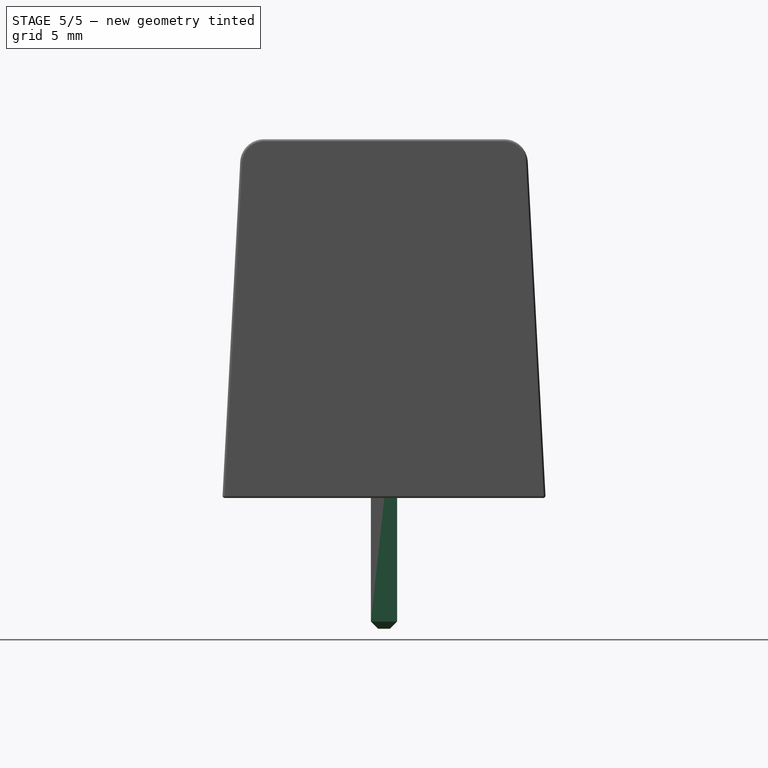
[diagram: stage 5 of 5 — right view after this stage's code; geometry added in this stage tinted green]
FEATURE [Sketcher::SketchObject] Sketch008
  Placement = pos=(0,0,5) rot=(-1,0,0;3.14159rad)
  sketch-geometry (8):
    g0: LineSegment StartX=-4.675 StartY=0.55 StartZ=0 EndX=-3.575 EndY=0.55 EndZ=0
    g1: LineSegment StartX=-3.575 StartY=0.55 StartZ=0 EndX=-3.575 EndY=-0.55 EndZ=0
    g2: LineSegment StartX=-3.575 StartY=-0.55 StartZ=0 EndX=-4.675 EndY=-0.55 EndZ=0
    g3: LineSegment StartX=-4.675 StartY=-0.55 StartZ=0 EndX=-4.675 EndY=0.55 EndZ=0
    g4: LineSegment StartX=3.575 StartY=0.55 StartZ=0 EndX=4.675 EndY=0.55 EndZ=0
    g5: LineSegment StartX=4.675 StartY=0.55 StartZ=0 EndX=4.675 EndY=-0.55 EndZ=0
    g6: LineSegment StartX=4.675 StartY=-0.55 StartZ=0 EndX=3.575 EndY=-0.55 EndZ=0
    g7: LineSegment StartX=3.575 StartY=-0.55 StartZ=0 EndX=3.575 EndY=0.55 EndZ=0
  constraints (24):
    c: Coincident(g0,g1)
    c: Coincident(g1,g2)
    c: Coincident(g2,g3)
    c: Coincident(g3,g0)
    c: Horizontal(g0)
    c: Horizontal(g2)
    c: Vertical(g1)
    c: Vertical(g3)
    c: Equal(g1,g0)
    c: DistanceX(g0) = 1.1
    c: DistanceX(g-1,g1) = -3.575
    c: Symmetric(g0,g1,g-1)
    c: Coincident(g4,g5)
    c: Coincident(g5,g6)
    c: Coincident(g6,g7)
    c: Coincident(g7,g4)
    c: Horizontal(g4)
    c: Horizontal(g6)
    c: Vertical(g5)
    c: Vertical(g7)
    c: Equal(g4,g5)
    c: Equal(g4,g0)
    c: DistanceX(g-1,g6) = 3.575
    c: Symmetric(g5,g4,g-1)
FEATURE [PartDesign::Pad] Pad001
  Length = 10.5
  Length2 = 100
  Placement = pos=(0,0,5) rot=(-1,0,0;3.14159rad)
  Sketch = -> Sketch008
  Type = 0
FEATURE [PartDesign::Chamfer] Chamfer  label="Pins"
  Base = -> Pad001 [Edge16,Edge19,Edge24,Edge22,Edge12,Edge4,Edge7,Edge10]
  Placement = pos=(0,0,5) rot=(-1,0,0;3.14159rad)
  Size = 0.3
FEATURE [Sketcher::SketchObject] Sketch010
  Placement = pos=(0,0,7.5) rot=(-1,0,0;3.14159rad)
  sketch-geometry (10):
    g0: LineSegment StartX=-7.175 StartY=-3.75 StartZ=0 EndX=-1.075 EndY=-3.75 EndZ=0
    g1: LineSegment StartX=-1.075 StartY=-3.75 StartZ=0 EndX=-1.075 EndY=3.75 EndZ=0
    g2: LineSegment StartX=-1.075 StartY=3.75 StartZ=0 EndX=-7.175 EndY=3.75 EndZ=0
    g3: LineSegment StartX=-7.175 StartY=3.75 StartZ=0 EndX=-7.175 EndY=-3.75 EndZ=0
    g4: Circle CenterX=-4.125 CenterY=0 CenterZ=0 NormalX=0 NormalY=0 NormalZ=1 Radius=1.6
    g5: LineSegment StartX=1.075 StartY=3.75 StartZ=0 EndX=7.175 EndY=3.75 EndZ=0
    g6: LineSegment StartX=7.175 StartY=3.75 StartZ=0 EndX=7.175 EndY=-3.75 EndZ=0
    g7: LineSegment StartX=7.175 StartY=-3.75 StartZ=0 EndX=1.075 EndY=-3.75 EndZ=0
    g8: LineSegment StartX=1.075 StartY=-3.75 StartZ=0 EndX=1.075 EndY=3.75 EndZ=0
    g9: Circle CenterX=4.125 CenterY=0 CenterZ=0 NormalX=0 NormalY=0 NormalZ=1 Radius=1.6
  constraints (30):
    c: Coincident(g0,g1)
    c: Coincident(g1,g2)
    c: Coincident(g2,g3)
    c: Coincident(g3,g0)
    c: Horizontal(g0)
    c: Horizontal(g2)
    c: Vertical(g1)
    c: Vertical(g3)
    c: DistanceX(g0) = 6.1
    c: DistanceY(g3) = -7.5
    c: Symmetric(g1,g0,g-1)
    c: DistanceX(g-1,g0) = -1.075
    c: PointOnObject(g4,g-1)
    c: Radius(g4) = 1.6
    c: DistanceX(g-1,g4) = -4.125
    c: Coincident(g5,g6)
    c: Coincident(g6,g7)
    c: Coincident(g7,g8)
    c: Coincident(g8,g5)
    c: Horizontal(g5)
    c: Horizontal(g7)
    c: Vertical(g6)
    c: Vertical(g8)
    c: DistanceX(g5) = 6.1
    c: DistanceY(g8) = 7.5
    c: DistanceX(g-1,g7) = 1.075
    c: PointOnObject(g9,g-1)
    c: DistanceX(g9,g7) = -3.05
    c: Radius(g9) = 1.6
    c: Symmetric(g5,g7,g-1)
FEATURE [PartDesign::Pad] Pad002
  Length = 1
  Length2 = 100
  Placement = pos=(0,0,7.5) rot=(-1,0,0;3.14159rad)
  Reversed = true
  Sketch = -> Sketch010
  Type = 0
FEATURE [Part::FeaturePython] Screw  label="M3x5-Screw"  # Fasteners workbench fastener (typed FeaturePython)
  Placement = pos=(-4.125,0,9.5) rot=(0,0,1;0rad)
  baseObject = -> Pad003 [Edge30]
  diameter = 4
  invert = false
  length = 1
  matchOuter = false
  offset = 0
  thread = false
  type = 16
FEATURE [PartDesign::Fillet] Fillet
  Base = -> Pad002 [Edge25,Edge19,Edge4,Edge10]
  Placement = pos=(0,0,7.5) rot=(-1,0,0;3.14159rad)
  Radius = 0.5
FEATURE [PartDesign::Fillet] Fillet001  label="Podlozka1"
  Base = -> Fillet [Edge8,Edge15,Edge29,Edge36]
  Placement = pos=(0,0,7.5) rot=(-1,0,0;3.14159rad)
  Radius = 0.1
FEATURE [Sketcher::SketchObject] Sketch013
  ExternalGeometry = -> [Pocket007]
  Placement = pos=(-7.125,0,8.5) rot=(0.57735,-0.57735,-0.57735;2.0944rad)
  Support = -> Pocket007 [Face4]
  sketch-geometry (6):
    g0: ArcOfCircle CenterX=0 CenterY=-8.25 CenterZ=0 NormalX=0 NormalY=0 NormalZ=1 Radius=9.25 StartAngle=1.2405 EndAngle=1.90109
    g1: LineSegment StartX=-3.32758 StartY=1.60662 StartZ=0 EndX=3.32758 EndY=1.60662 EndZ=0
    g2: LineSegment StartX=3.32758 StartY=1.60662 StartZ=0 EndX=3.32758 EndY=0.5 EndZ=0
    g3: LineSegment StartX=3.32758 StartY=0.5 StartZ=0 EndX=3 EndY=0.5 EndZ=0
    g4: LineSegment StartX=-3.32758 StartY=1.60662 StartZ=0 EndX=-3.32758 EndY=0.5 EndZ=0
    g5: LineSegment StartX=-3.32758 StartY=0.5 StartZ=0 EndX=-3 EndY=0.5 EndZ=0
  constraints (17):
    c: Coincident(g0,g-3)
    c: Coincident(g0,g-4)
    c: Horizontal(g1)
    c: Coincident(g1,g2)
    c: Vertical(g2)
    c: Coincident(g2,g3)
    c: Coincident(g3,g0)
    c: Horizontal(g3)
    c: Coincident(g1,g4)
    c: Vertical(g4)
    c: Coincident(g4,g5)
    c: Coincident(g5,g0)
    c: Horizontal(g5)
    c: Equal(g5,g3)
    c: DistanceX(g1) = 6.65516
    c: DistanceY(g4) = -1.10662
    c: Radius(g0) = 9.25
FEATURE [PartDesign::Pocket] Pocket008
  Length = 0
  Placement = pos=(0,0,8.5) rot=(0,0,1;0rad)
  Sketch = -> Sketch013
  Type = 3
  UpToFace = -> Pocket007 [Face3]
FEATURE [PartDesign::Fillet] Fillet002
  Base = -> Pocket008 [Edge15,Edge4,Edge9,Edge2]
  Placement = pos=(0,0,8.5) rot=(0,0,1;0rad)
  Radius = 0.25
FEATURE [PartDesign::Fillet] Fillet003  label="Podlozka21"
  Base = -> Fillet002 [Edge7]
  Placement = pos=(0,0,8.5) rot=(0,0,1;0rad)
  Radius = 0.1
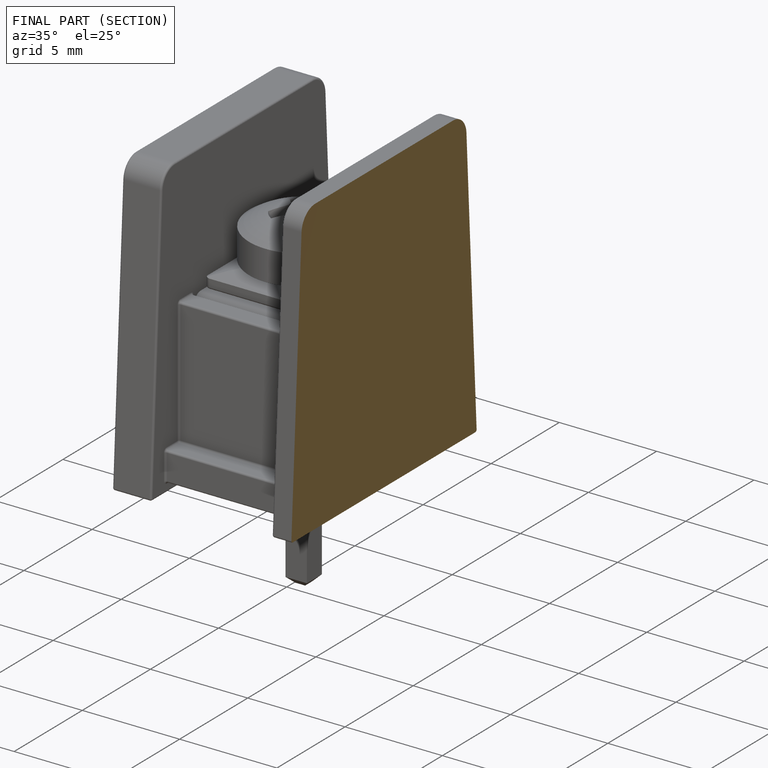
[diagram: finished part — half-section view (interior)]
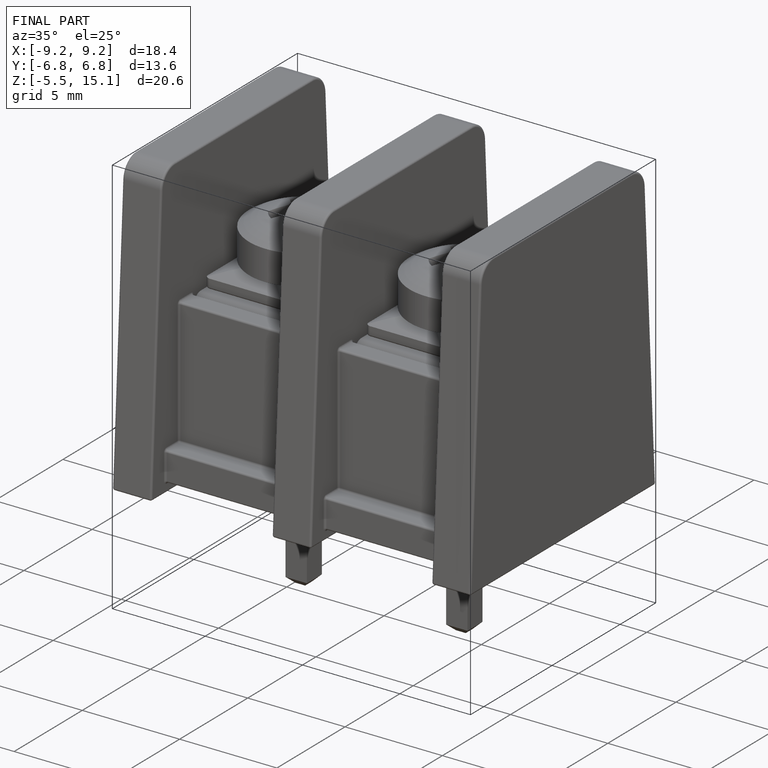
[diagram: finished part — iso view with bounding-box wireframe]
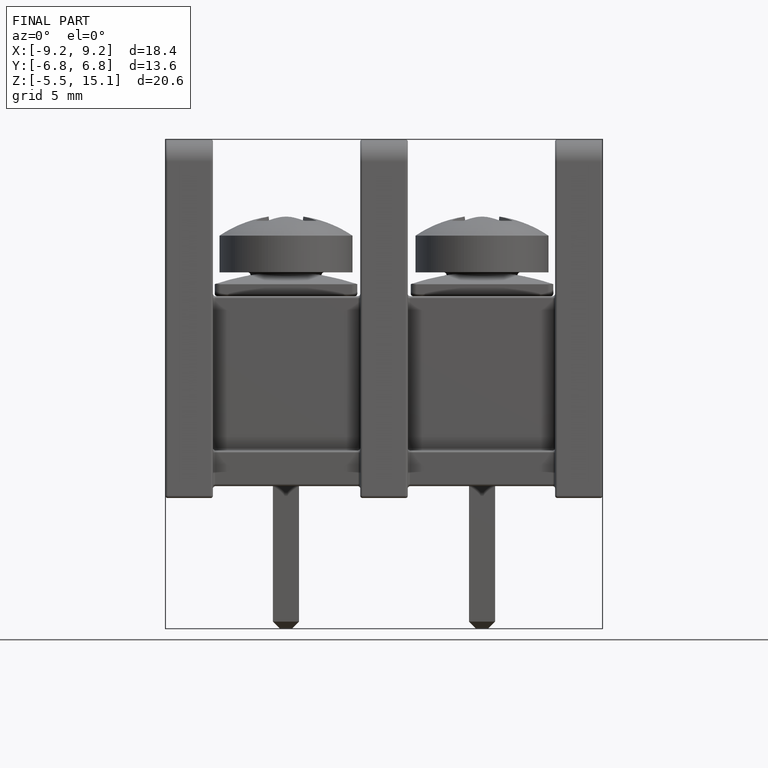
[diagram: finished part — front view with bounding-box wireframe]
